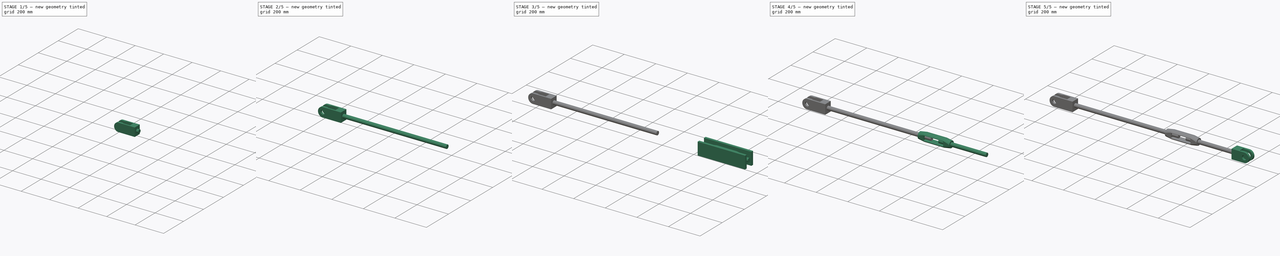
[diagram: build sequence overview — one tinted view per stage of 5, left to right]
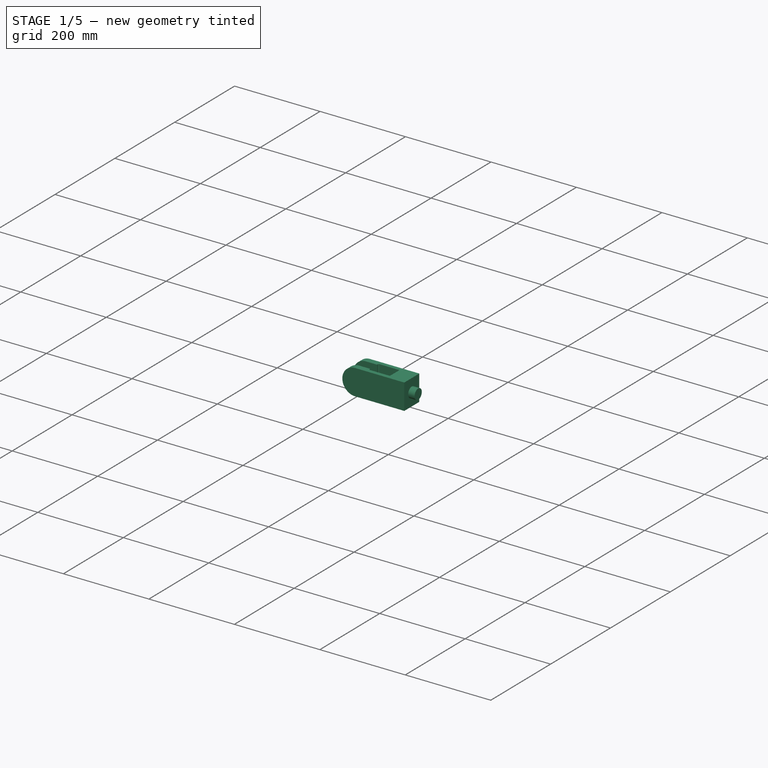
[diagram: stage 1 of 5 — iso view after this stage's code; geometry added in this stage tinted green]
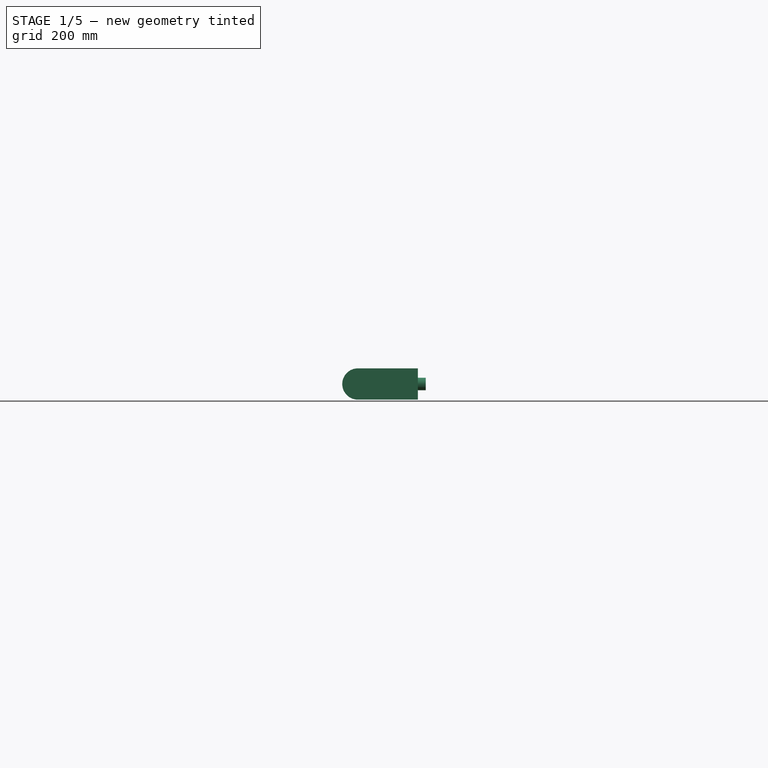
[diagram: stage 1 of 5 — front view after this stage's code; geometry added in this stage tinted green]
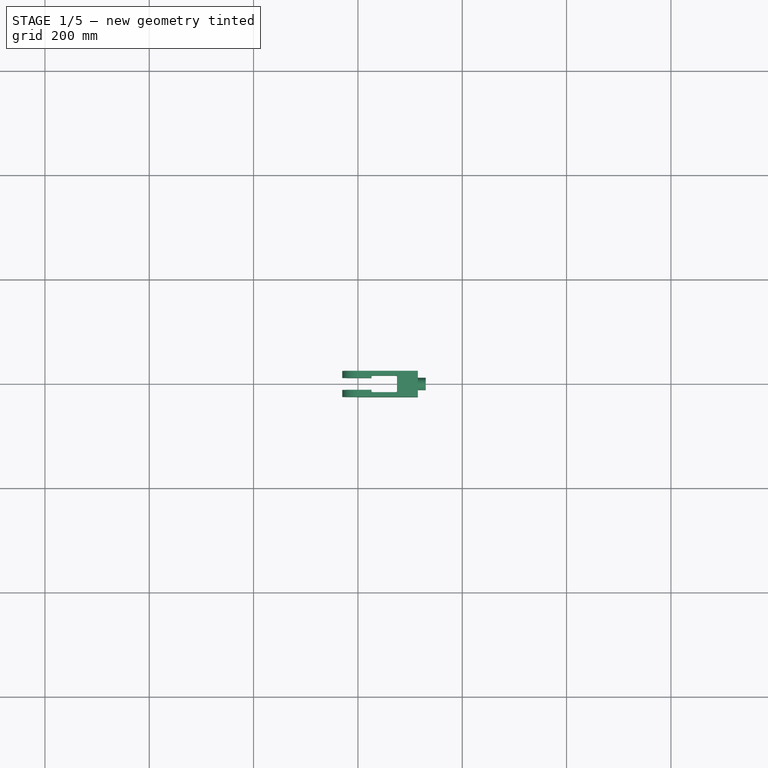
[diagram: stage 1 of 5 — top view after this stage's code; geometry added in this stage tinted green]
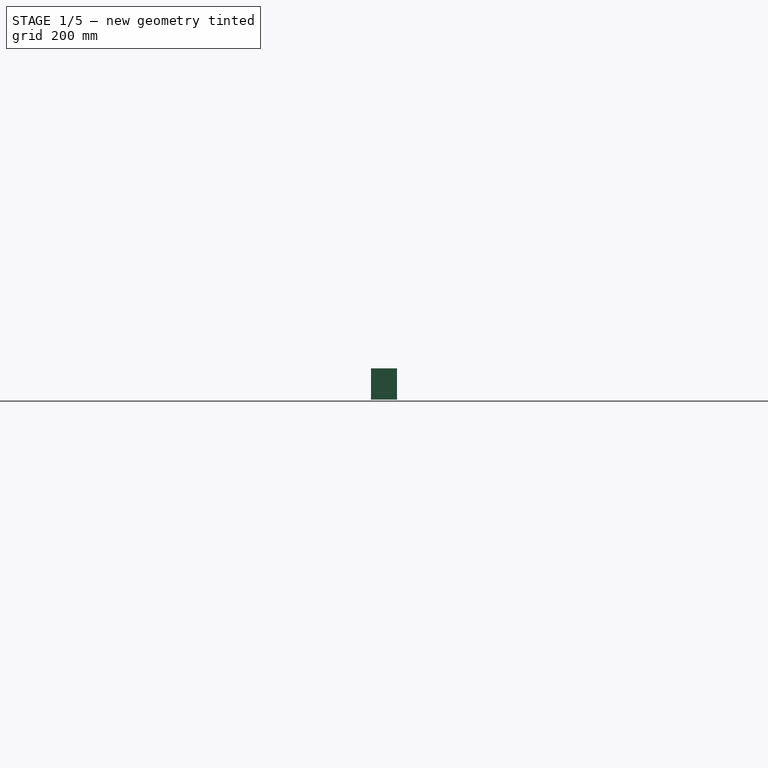
[diagram: stage 1 of 5 — right view after this stage's code; geometry added in this stage tinted green]
FCSTD DOCUMENT  (FreeCAD 1.0R39109 (Git))
Label: turnBackleA
License: All rights reserved
LicenseURL: https://en.wikipedia.org/wiki/All_rights_reserved
objects: Sketcher::SketchObject×10, Part::Extrusion×8, Part::Cut×7, Part::Cylinder×2, PartDesign::Pad×1, Spreadsheet::Sheet×1, Part::MultiFuse×1, Part::Revolution×1, App::Part×1
note: 42 computed .brp shape members not serialized (recipe doc carries the construction recipe); baked Part::Feature solids carry a one-line shape summary decoded from their .brp

FEATURE [Sketcher::SketchObject] Sketch
  ArcFitTolerance = 0
  FullyConstrained = true
  MakeInternals = false
  MapMode = 5
  Placement = pos=(0,0,0) rot=(1,0,0;1.5708rad)
  expr: Constraints[10] = Spreadsheet.L7 * 2
  expr: Constraints[9] = Spreadsheet.B7
  sketch-geometry (4):
    g0: LineSegment StartX=115 StartY=30 StartZ=0 EndX=-1.39551e-11 EndY=30 EndZ=0
    g1: ArcOfCircle CenterX=0 CenterY=0 CenterZ=0 NormalX=0 NormalY=0 NormalZ=1 AngleXU=0 Radius=30 StartAngle=1.5708 EndAngle=4.71239
    g2: LineSegment StartX=1.277e-13 StartY=-30 StartZ=0 EndX=115 EndY=-30 EndZ=0
    g3: LineSegment StartX=115 StartY=-30 StartZ=0 EndX=115 EndY=30 EndZ=0
  constraints (11):
    c: Horizontal(g0)
    c: Tangent(g0,g1) = -1.5708
    c: PointOnObject(g1,g-2)
    c: Coincident(g1,g2)
    c: Horizontal(g2)
    c: Coincident(g2,g3)
    c: Coincident(g3,g0)
    c: Vertical(g3)
    c: Coincident(g-1,g1)
    c: DistanceX(g0,g0) = 115
    c: Distance(g3) = 60
FEATURE [PartDesign::Pad] Pad
  Direction = (0,-1,0)
  Length = 50
  Length2 = 10
  Midplane = true
  Placement = pos=(0,0,0) rot=(1,0,0;1.5708rad)
  Profile = -> Sketch
  ReferenceAxis = -> Sketch [N_Axis]
  Suppressed = false
  Type = 0
  expr: Length = Spreadsheet.D7
FEATURE [Sketcher::SketchObject] Sketch017
  ArcFitTolerance = 0
  FullyConstrained = true
  MakeInternals = false
  MapMode = 5
  Placement = pos=(90,0,0) rot=(0.57735,0.57735,0.57735;2.0944rad)
  expr: Constraints[1] = Spreadsheet.dia
  sketch-geometry (1):
    g0: Circle CenterX=0 CenterY=0 CenterZ=0 NormalX=0 NormalY=0 NormalZ=1 AngleXU=0 Radius=12
  constraints (2):
    c: Coincident(g0,g-1)
    c: Diameter(g0) = 24
FEATURE [Part::Extrusion] Extrude008
  Base = -> Sketch017
  Dir = (1,0,0)
  DirMode = 2
  FaceMakerClass = Part::FaceMakerBullseye
  FaceMakerMode = 3
  LengthFwd = 40
  LengthRev = 0
  Solid = true
  Symmetric = false
  expr: LengthFwd = Spreadsheet.I7
FEATURE [Sketcher::SketchObject] Sketch016
  ArcFitTolerance = 0
  ExternalGeometry = -> [Pad]
  FullyConstrained = true
  MakeInternals = false
  expr: Constraints[17] = Spreadsheet.G7
  expr: Constraints[18] = Spreadsheet.G7 / 2
  expr: Constraints[27] = Spreadsheet.E7 / 2
  expr: Constraints[31] = Spreadsheet.I7
  expr: Constraints[32] = Spreadsheet.L7
  expr: Constraints[6] = Spreadsheet.E7
  expr: Constraints[7] = Spreadsheet.H7
  sketch-geometry (12):
    g0: LineSegment StartX=-30 StartY=11.5 StartZ=0 EndX=26 EndY=11.5 EndZ=0
    g1: LineSegment StartX=28 StartY=16 StartZ=0 EndX=73 EndY=16 EndZ=0
    g2: LineSegment StartX=75 StartY=14 StartZ=0 EndX=75 EndY=-14 EndZ=0
    g3: LineSegment StartX=73 StartY=-16 StartZ=0 EndX=28 EndY=-16 EndZ=0
    g4: LineSegment StartX=26 StartY=-14 StartZ=0 EndX=26 EndY=-11.5 EndZ=0
    g5: LineSegment StartX=26 StartY=-11.5 StartZ=0 EndX=-30 EndY=-11.5 EndZ=0
    g6: LineSegment StartX=-30 StartY=-11.5 StartZ=0 EndX=-30 EndY=11.5 EndZ=0
    g7: ArcOfCircle CenterX=28 CenterY=14 CenterZ=0 NormalX=0 NormalY=0 NormalZ=1 AngleXU=0 Radius=2 StartAngle=1.5708 EndAngle=3.14159
    g8: ArcOfCircle CenterX=28 CenterY=-14 CenterZ=0 NormalX=0 NormalY=0 NormalZ=1 AngleXU=0 Radius=2 StartAngle=3.14159 EndAngle=4.71239
    g9: ArcOfCircle CenterX=73 CenterY=-14 CenterZ=0 NormalX=0 NormalY=0 NormalZ=1 AngleXU=0 Radius=2 StartAngle=4.71239 EndAngle=6.28319
    g10: ArcOfCircle CenterX=73 CenterY=14 CenterZ=0 NormalX=0 NormalY=0 NormalZ=1 AngleXU=0 Radius=2 StartAngle=-5.08e-13 EndAngle=1.5708
    g11: LineSegment StartX=26 StartY=11.5 StartZ=0 EndX=26 EndY=14 EndZ=0
  constraints (33):
    c: Horizontal(g0)
    c: Coincident(g4,g5)
    c: Horizontal(g5)
    c: Coincident(g5,g6)
    c: Coincident(g6,g0)
    c: Vertical(g6)
    c: DistanceY(g6,g6) = 23
    c: DistanceX(g-1,g0) = 26
    c: Horizontal(g1)
    c: Horizontal(g3)
    c: Coincident(g11,g0)
    c: Vertical(g11)
    c: Vertical(g2)
    c: Tangent(g9,g2) = 1.5708
    c: Tangent(g1,g10) = 1.5708
    c: Tangent(g10,g2) = 1.5708
    c: Tangent(g1,g7) = 1.5708
    c: DistanceY(g3,g1) = 32
    c: DistanceY(g-1,g1) = 16
    c: Radius(g10) = 2
    c: Equal(g10,g9)
    c: Equal(g9,g7)
    c: Radius(g8) = 2
    c: Vertical(g4)
    c: Vertical(g4,g0)
    c: Tangent(g8,g4) = 1.5708
    c: Vertical(g8,g8)
    c: DistanceY(g-1,g0) = 11.5
    c: Tangent(g9,g3) = 1.5708
    c: Tangent(g7,g11) = 1.5708
    c: Coincident(g8,g3)
    c: DistanceX(g2,g-3) = 40
    c: DistanceX(g0,g-1) = 30
FEATURE [Part::Extrusion] Extrude007
  Base = -> Sketch016
  Dir = (0,0,1)
  DirMode = 2
  FaceMakerClass = Part::FaceMakerBullseye
  FaceMakerMode = 3
  LengthFwd = 150
  LengthRev = 0
  Solid = true
  Symmetric = true
FEATURE [Part::Cut] Cut
  Base = -> Pad
  Tool = -> Extrude007
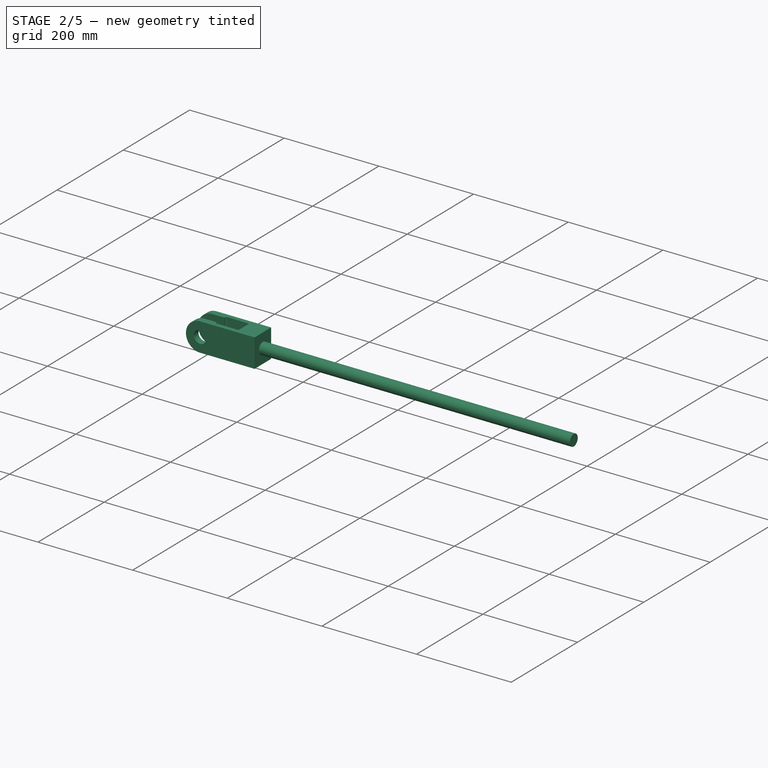
[diagram: stage 2 of 5 — iso view after this stage's code; geometry added in this stage tinted green]
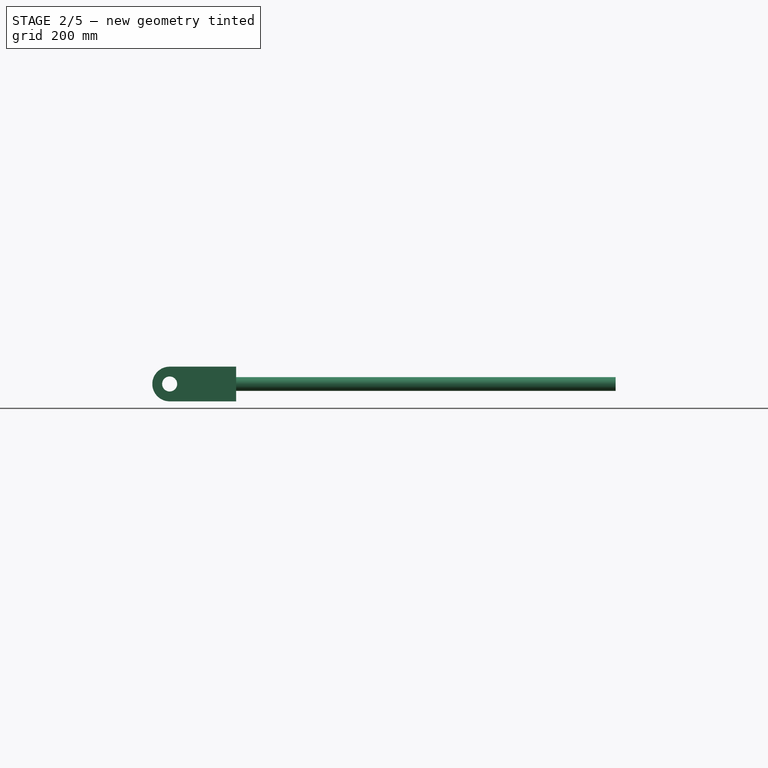
[diagram: stage 2 of 5 — front view after this stage's code; geometry added in this stage tinted green]
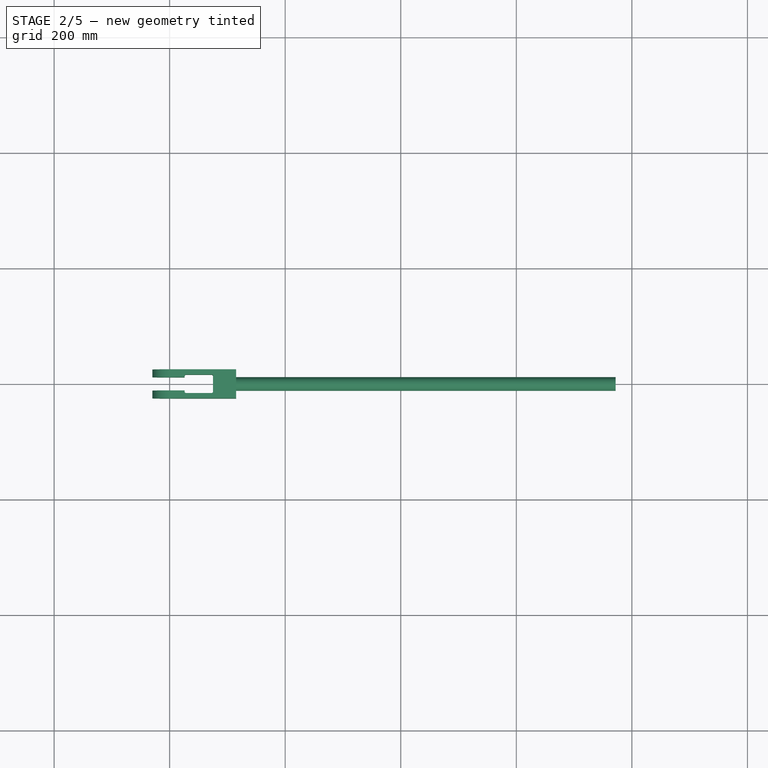
[diagram: stage 2 of 5 — top view after this stage's code; geometry added in this stage tinted green]
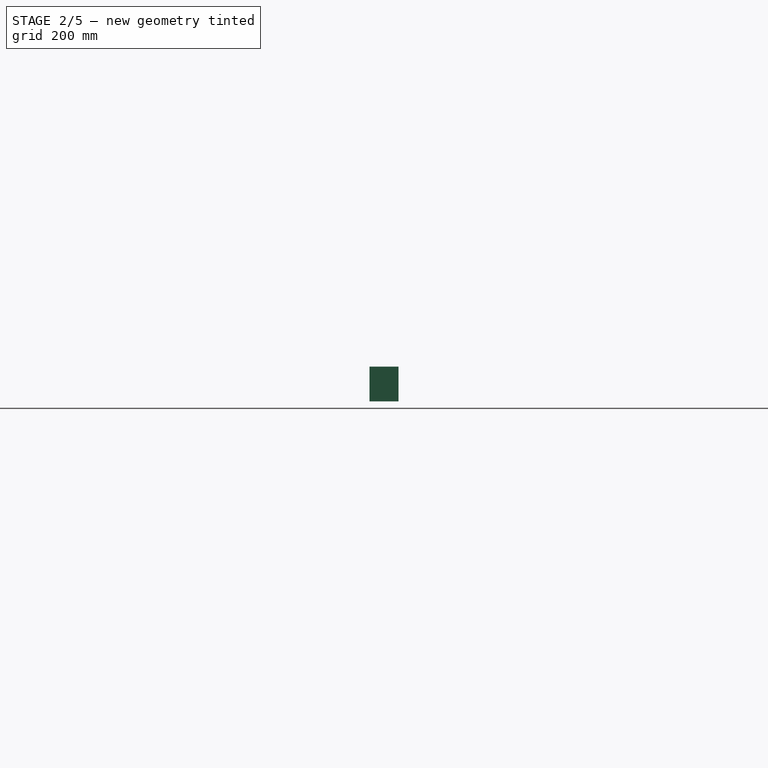
[diagram: stage 2 of 5 — right view after this stage's code; geometry added in this stage tinted green]
FEATURE [Spreadsheet::Sheet] Spreadsheet
  cells = A1='A; A2='rodDia dia; B2(dia)=24; A3='length L0; B3(L0)=1200; C3='turnbackle; D3(lx)=300; B4='l; C4='l1; D4='a; E4='b; F4='c; G4='e; H4='f; I4='g; J4='h; K4='i; L4='r; A5='forkEndR; B5=160; D5=50; E5=23; F5=28; G5=32; H5=26; I5=80; J5=10; K5=26; L5=30; A6='turnBackle; B6=200; C6=38; D6=54; E6=30; F6=42; A7='forkEndL; B7=115; D7=50; E7=23; F7=26; G7=32; H7=26; I7=40; L7=30; A8=1; B8=2; C8=3; D8=4; E8=5; F8=6; G8=7; H8=8; I8=9; J8=10; K8=11; L8=12; A9='turnBackle; A10='d; B10='l; C10='l1; D10='a; E10='b; F10='c; A11=10; B11=75; C11=15; D11=24; E11=13; F11=17; A12=12; B12=100; C12=20; D12=30; E12=16; F12=22; A13=16; B13=125; C13=24; D13=36; E13=20; F13=27; A14=20; B14=150; C14=28; D14=42; E14=23; F14=33; A15=22; B15=175; C15=33; D15=48; E15=27; F15=37; A16=24; B16=200; C16=38; D16=54; E16=30; F16=42; A17=30; B17=250; C17=47; D17=66; E17=37; F17=52; A18='forkEnd_L; A19='d; B19='l; C19='a; D19='b; E19='c; F19='e; G19='f; H19='g; I19='r; A20=10; B20=50; C20=20; D20=7; E20=10; F20=12; G20=10; H20=15; I20=12; A21=12; B21=60; C21=25; D21=10; E21=13; F21=16; G21=13; H21=20; I21=15; A22=16; B22=75; C22=30; D22=13; E22=16; F22=20; G22=16; H22=25; I22=19; A23=20; B23=90; C23=40; D23=16; E23=20; F23=24; G23=20; H23=30; I23=23; A24=22; B24=100; C24=45; D24=20; E24=23; F24=28; G24=23; H24=35; I24=27; A25=24; B25=115; C25=50; D25=23; E25=26; F25=32; G25=26; H25=40; I25=30; A26=30; B26=140; C26=65; D26=30; E26=33; F26=40; G26=33; H26=50; I26=38; A27='forkEnd_R; A28='d; B28='l; C28='a; D28='b; E28='c; F28='r; G28='e; H28='f; I28='g; J28='h; K28='i; A29=10; B29=60; C29=20; D29=7; E29=11; F29=12; G29=12; H29=10; I29=30; J29=5; +67 more cells
FEATURE [Sketcher::SketchObject] Sketch007
  ArcFitTolerance = 0
  AttachmentSupport = -> [Pad]
  FullyConstrained = true
  MakeInternals = false
  MapMode = 5
  Placement = pos=(0,-25,-8.3e-15) rot=(1,0,0;1.5708rad)
  expr: Constraints[1] = Spreadsheet.F7 / 2
  sketch-geometry (1):
    g0: Circle CenterX=0 CenterY=0 CenterZ=0 NormalX=0 NormalY=0 NormalZ=1 AngleXU=0 Radius=13
  constraints (2):
    c: Coincident(g0,g-1)
    c: Radius(g0) = 13
FEATURE [Part::Extrusion] Extrude
  Base = -> Sketch007
  Dir = (0,-1,2e-16)
  DirMode = 2
  FaceMakerClass = Part::FaceMakerBullseye
  FaceMakerMode = 3
  LengthFwd = 65
  LengthRev = 0
  Reversed = true
  Solid = true
  Symmetric = false
FEATURE [Part::Cylinder] Cylinder001  label="rod"
  Angle = 360
  AttacherType = Attacher::AttachEngine3D
  FirstAngle = 0
  Height = 693
  Placement = pos=(-428,0,-3.4e-14) rot=(0,-1,0;1.5708rad)
  Radius = 12
  SecondAngle = 0
  expr: .Placement.Base.x = -(Spreadsheet.lx + Spreadsheet.I5 + Spreadsheet.dia * 2)
  expr: Height = Spreadsheet.L0 - (Spreadsheet.lx + Spreadsheet.I5 + Spreadsheet.B6 - 4 * Spreadsheet.dia - 2 * Spreadsheet.C6) - Spreadsheet.B7 + Spreadsheet.I7 - Spreadsheet.dia
  expr: Radius = Spreadsheet.dia / 2
FEATURE [Part::Cut] Cut007
  Base = -> Cut
  Tool = -> Extrude008
FEATURE [Part::Cut] Cut008  label="forkEndL"
  Base = -> Cut007
  Placement = pos=(-1200,0,1.46e-13) rot=(0,0,1;0rad)
  Tool = -> Extrude
  expr: .Placement.Base.x = -Spreadsheet.L0
FEATURE [App::Part] Part  label="TurnBackle"
  Group = -> [Spreadsheet,Sketch009,Cylinder,Cut003,Sketch010,Extrude002,Extrude003,Fusion,Revolve,Sketch012,Cut005,Cut004,Extrude004,Extrude005,Extrude006,Sketch013,Sketch011,Sketch014,Cut006,Cylinder001,Extrude,Sketch007,Extrude008,Extrude007,Cut,Cut007,Sketch017,Pad,Sketch,Sketch016,Cut008]
  Origin = -> Origin
  Placement = pos=(0,0,0) rot=(0,1,0;3.14159rad)
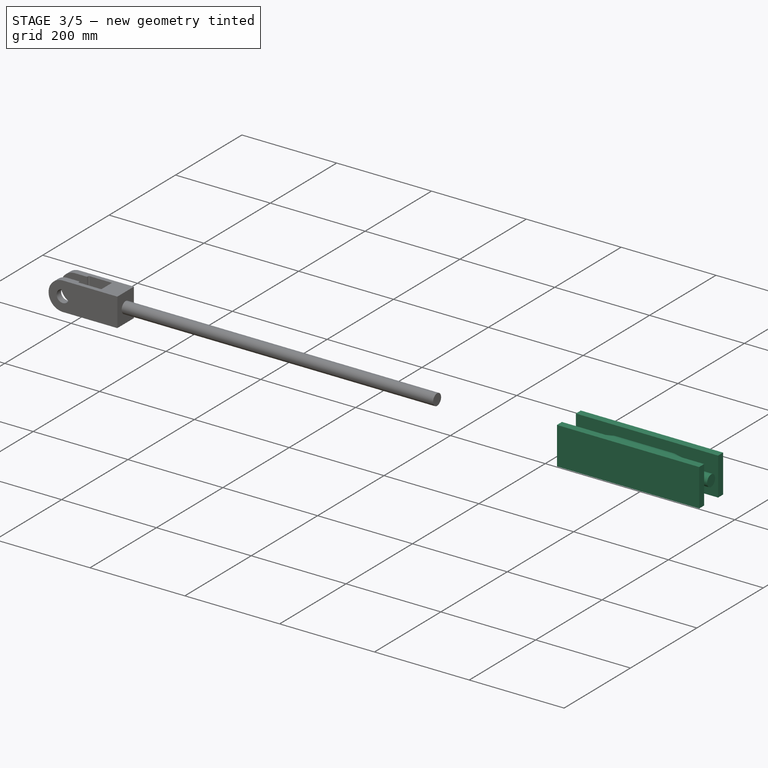
[diagram: stage 3 of 5 — iso view after this stage's code; geometry added in this stage tinted green]
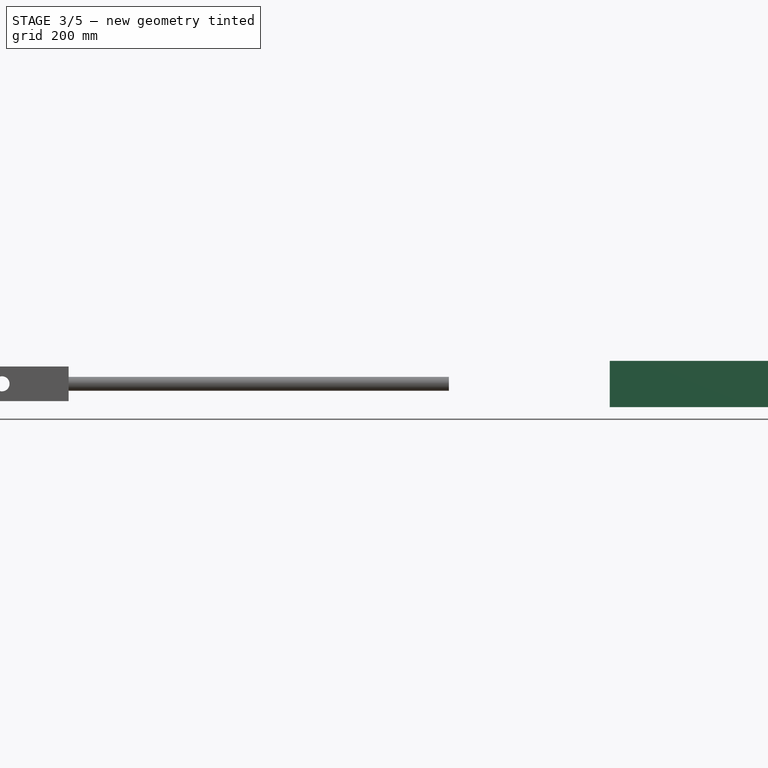
[diagram: stage 3 of 5 — front view after this stage's code; geometry added in this stage tinted green]
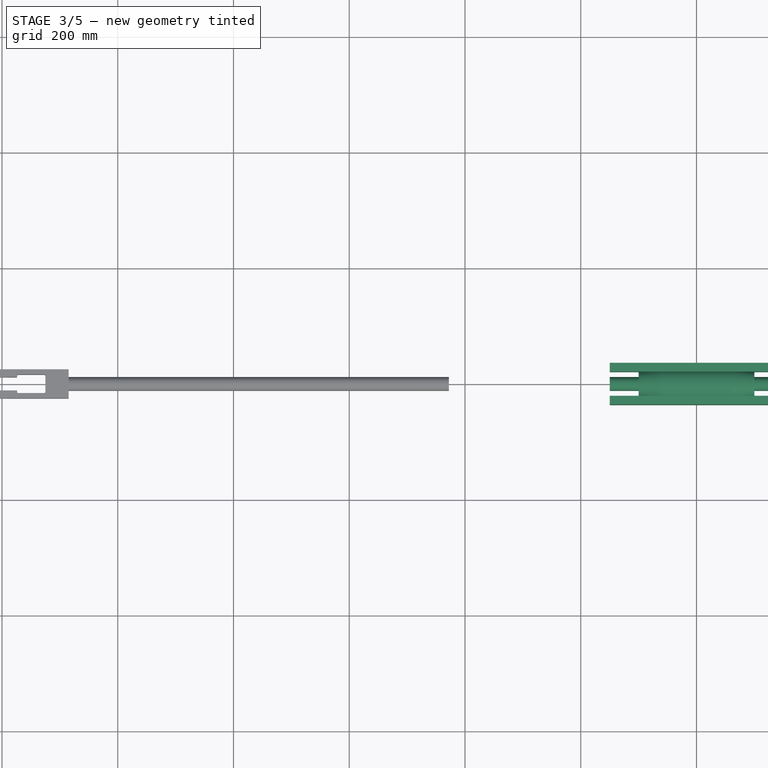
[diagram: stage 3 of 5 — top view after this stage's code; geometry added in this stage tinted green]
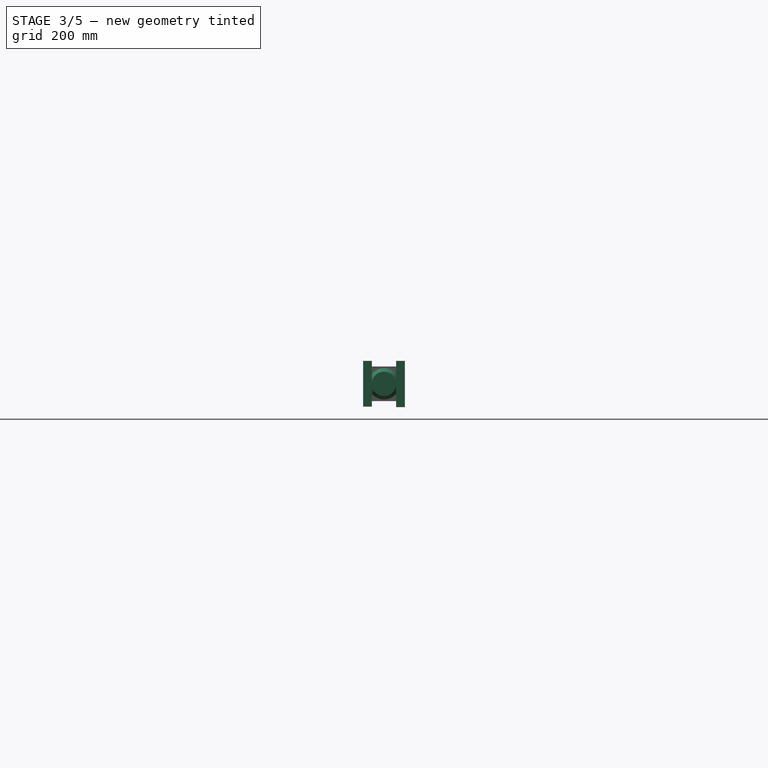
[diagram: stage 3 of 5 — right view after this stage's code; geometry added in this stage tinted green]
FEATURE [Sketcher::SketchObject] Sketch011
  ArcFitTolerance = 0
  FullyConstrained = true
  MakeInternals = false
  Placement = pos=(0,0,0) rot=(1,0,0;1.5708rad)
  expr: Constraints[10] = Spreadsheet.C6
  expr: Constraints[11] = Spreadsheet.B6
  expr: Constraints[12] = Spreadsheet.D6 / 2
  expr: Constraints[13] = Spreadsheet.F6 / 2
  expr: Constraints[14] = Spreadsheet.B6 / 2
  expr: Constraints[17] = Spreadsheet.C6
  sketch-geometry (6):
    g0: LineSegment StartX=-100 StartY=0 StartZ=0 EndX=-100 EndY=21 EndZ=0
    g1: LineSegment StartX=-100 StartY=21 StartZ=0 EndX=-62 EndY=27 EndZ=0
    g2: LineSegment StartX=-62 StartY=27 StartZ=0 EndX=62 EndY=27 EndZ=0
    g3: LineSegment StartX=62 StartY=27 StartZ=0 EndX=100 EndY=21 EndZ=0
    g4: LineSegment StartX=100 StartY=21 StartZ=0 EndX=100 EndY=0 EndZ=0
    g5: LineSegment StartX=100 StartY=0 StartZ=0 EndX=-100 EndY=0 EndZ=0
  constraints (18):
    c: PointOnObject(g0,g-1)
    c: Vertical(g0)
    c: Coincident(g0,g1)
    c: Coincident(g1,g2)
    c: Horizontal(g2)
    c: Coincident(g2,g3)
    c: Coincident(g3,g4)
    c: PointOnObject(g4,g-1)
    c: Vertical(g4)
    c: Coincident(g4,g5)
    c: DistanceX(g2,g3) = 38
    c: DistanceX(g0,g3) = 200
    c: Distance(g1,g5) = 27
    c: Distance(g4) = 21
    c: DistanceX(g-1,g4) = 100
    c: Horizontal(g0,g3)
    c: Coincident(g5,g0)
    c: DistanceX(g0,g1) = 38
FEATURE [Part::Revolution] Revolve
  Angle = 360
  Axis = (-1,0,0)
  AxisLink = -> Sketch011 [Edge6]
  Base = (-100,0,0)
  FaceMakerClass = Part::FaceMakerBullseye
  Solid = true
  Source = -> Sketch011
  Symmetric = false
FEATURE [Sketcher::SketchObject] Sketch012
  ArcFitTolerance = 0
  FullyConstrained = false
  MakeInternals = false
  Placement = pos=(0,0,0) rot=(0.57735,0.57735,0.57735;2.0944rad)
  expr: Constraints[16] = Spreadsheet.F6
  expr: Constraints[17] = Spreadsheet.F6 / 2
  sketch-geometry (8):
    g0: LineSegment StartX=-21 StartY=39.685 StartZ=0 EndX=-36 EndY=39.685 EndZ=0
    g1: LineSegment StartX=-36 StartY=39.685 StartZ=0 EndX=-36 EndY=-39.3666 EndZ=0
    g2: LineSegment StartX=-36 StartY=-39.3666 StartZ=0 EndX=-21 EndY=-39.3666 EndZ=0
    g3: LineSegment StartX=-21 StartY=-39.3666 StartZ=0 EndX=-21 EndY=39.685 EndZ=0
    g4: LineSegment StartX=21 StartY=39.685 StartZ=0 EndX=36 EndY=39.685 EndZ=0
    g5: LineSegment StartX=36 StartY=39.685 StartZ=0 EndX=36 EndY=-40.315 EndZ=0
    g6: LineSegment StartX=36 StartY=-40.315 StartZ=0 EndX=21 EndY=-40.315 EndZ=0
    g7: LineSegment StartX=21 StartY=-40.315 StartZ=0 EndX=21 EndY=39.685 EndZ=0
  constraints (22):
    c: Coincident(g0,g1)
    c: Coincident(g1,g2)
    c: Coincident(g2,g3)
    c: Coincident(g3,g0)
    c: Horizontal(g0)
    c: Horizontal(g2)
    c: Vertical(g1)
    c: Vertical(g3)
    c: Coincident(g4,g5)
    c: Coincident(g5,g6)
    c: Coincident(g6,g7)
    c: Coincident(g7,g4)
    c: Horizontal(g4)
    c: Horizontal(g6)
    c: Vertical(g5)
    c: Vertical(g7)
    c: DistanceX(g0,g4) = 42
    c: Distance(g-1,g7) = 21
    c: Distance(g5) = 80
    c: Distance(g4) = 15
    c: Distance(g0) = 15
    c: Horizontal(g0,g4)
FEATURE [Part::Extrusion] Extrude004
  Base = -> Sketch012
  Dir = (1,0,0)
  DirMode = 2
  FaceMakerClass = Part::FaceMakerBullseye
  FaceMakerMode = 3
  LengthFwd = 300
  LengthRev = 0
  Solid = true
  Symmetric = true
FEATURE [Sketcher::SketchObject] Sketch013
  ArcFitTolerance = 0
  FullyConstrained = true
  MakeInternals = false
  Placement = pos=(0,0,0) rot=(1,0,0;1.5708rad)
  expr: Constraints[17] = Spreadsheet.E6
  expr: Constraints[18] = Spreadsheet.B6 - 2 * Spreadsheet.C6
  expr: Constraints[19] = (Spreadsheet.B6 - 2 * Spreadsheet.C6) / 2
  expr: Constraints[20] = Spreadsheet.E6 / 2
  sketch-geometry (9):
    g0: LineSegment StartX=62 StartY=10 StartZ=0 EndX=62 EndY=-10 EndZ=0
    g1: LineSegment StartX=57 StartY=-15 StartZ=0 EndX=-57 EndY=-15 EndZ=0
    g2: LineSegment StartX=-62 StartY=-10 StartZ=0 EndX=-62 EndY=10 EndZ=0
    g3: LineSegment StartX=-57 StartY=15 StartZ=0 EndX=57 EndY=15 EndZ=0
    g4: GeomPoint [constr] X=0 Y=0 Z=0
    g5: ArcOfCircle CenterX=-57 CenterY=10 CenterZ=0 NormalX=0 NormalY=0 NormalZ=1 AngleXU=0 Radius=5 StartAngle=1.5708 EndAngle=3.14159
    g6: ArcOfCircle CenterX=-57 CenterY=-10 CenterZ=0 NormalX=0 NormalY=0 NormalZ=1 AngleXU=0 Radius=5 StartAngle=3.14159 EndAngle=4.71239
    g7: ArcOfCircle CenterX=57 CenterY=-10 CenterZ=0 NormalX=0 NormalY=0 NormalZ=1 AngleXU=0 Radius=5 StartAngle=4.71239 EndAngle=6.28319
    g8: ArcOfCircle CenterX=57 CenterY=10 CenterZ=0 NormalX=0 NormalY=0 NormalZ=1 AngleXU=0 Radius=5 StartAngle=0 EndAngle=1.5708
  constraints (21):
    c: Horizontal(g1)
    c: Horizontal(g3)
    c: Vertical(g0)
    c: Vertical(g2)
    c: Coincident(g4,g-1)
    c: Tangent(g3,g5) = 1.5708
    c: Tangent(g2,g5) = 1.5708
    c: Tangent(g1,g6) = 1.5708
    c: Tangent(g2,g6) = 1.5708
    c: Tangent(g1,g7) = 1.5708
    c: Tangent(g0,g7) = 1.5708
    c: Tangent(g0,g8) = 1.5708
    c: Tangent(g3,g8) = 1.5708
    c: Radius(g8) = 5
    c: Equal(g8,g7)
    c: Equal(g7,g6)
    c: Equal(g6,g5)
    c: DistanceY(g1,g3) = 30
    c: DistanceX(g2,g0) = 124
    c: Distance(g4,g2) = 62
    c: Distance(g4,g1) = 15
FEATURE [Part::Extrusion] Extrude005
  Base = -> Sketch013
  Dir = (0,-1,2e-16)
  DirMode = 2
  FaceMakerClass = Part::FaceMakerBullseye
  FaceMakerMode = 3
  LengthFwd = 60
  LengthRev = 0
  Solid = true
  Symmetric = true
FEATURE [Sketcher::SketchObject] Sketch014
  ArcFitTolerance = 0
  FullyConstrained = true
  MakeInternals = false
  Placement = pos=(0,0,0) rot=(0.57735,0.57735,0.57735;2.0944rad)
  expr: Constraints[1] = Spreadsheet.dia / 2
  sketch-geometry (1):
    g0: Circle CenterX=0 CenterY=0 CenterZ=0 NormalX=0 NormalY=0 NormalZ=1 AngleXU=0 Radius=12
  constraints (2):
    c: Coincident(g0,g-1)
    c: Radius(g0) = 12
FEATURE [Part::Extrusion] Extrude006
  Base = -> Sketch014
  Dir = (1,0,0)
  DirMode = 2
  FaceMakerClass = Part::FaceMakerBullseye
  FaceMakerMode = 3
  LengthFwd = 300
  LengthRev = 0
  Solid = true
  Symmetric = true
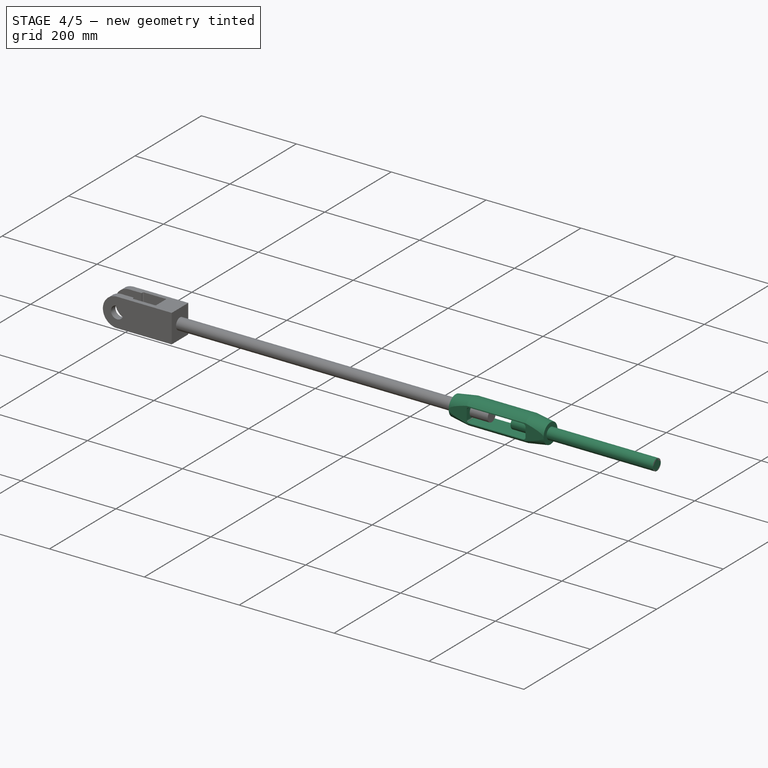
[diagram: stage 4 of 5 — iso view after this stage's code; geometry added in this stage tinted green]
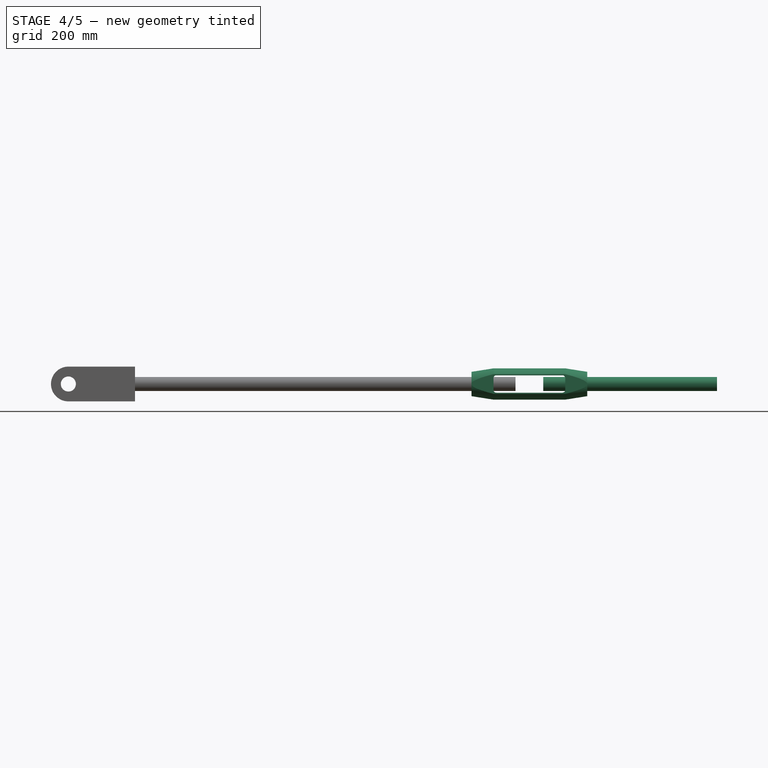
[diagram: stage 4 of 5 — front view after this stage's code; geometry added in this stage tinted green]
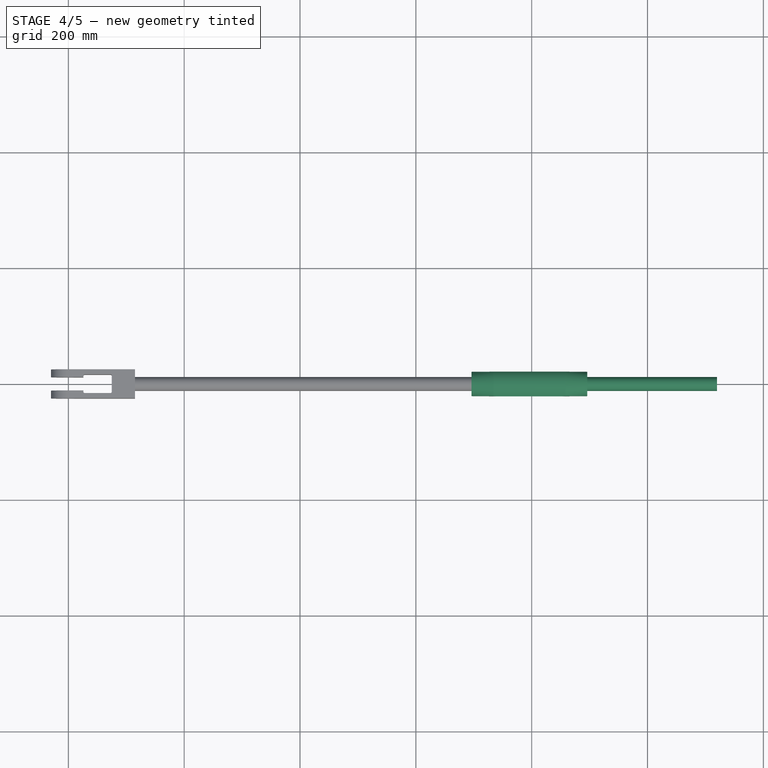
[diagram: stage 4 of 5 — top view after this stage's code; geometry added in this stage tinted green]
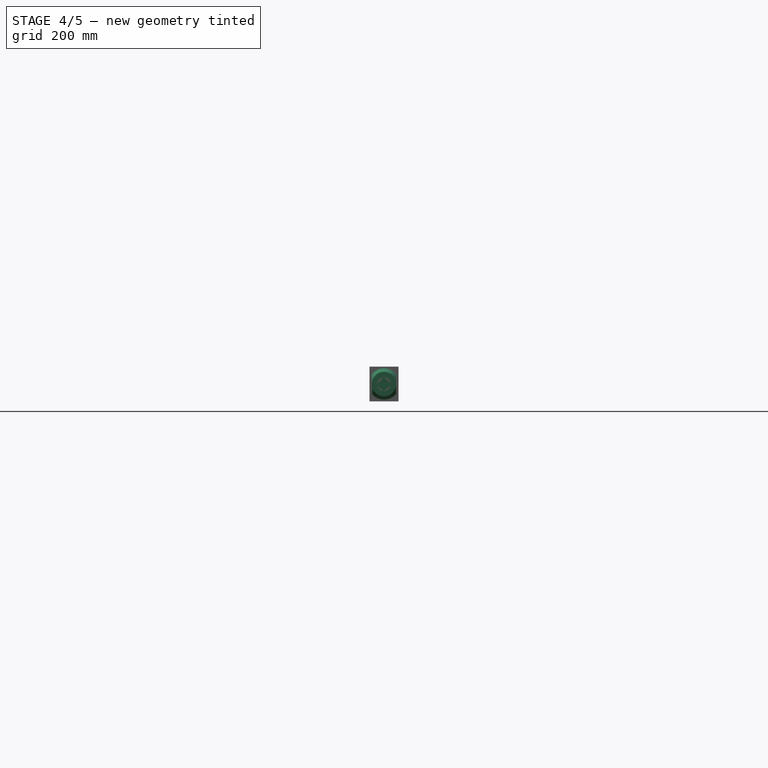
[diagram: stage 4 of 5 — right view after this stage's code; geometry added in this stage tinted green]
FEATURE [Part::Cylinder] Cylinder  label="円柱"
  Angle = 360
  AttacherType = Attacher::AttachEngine3D
  FirstAngle = 0
  Height = 300
  Placement = pos=(-80,0,0) rot=(0,-1,0;1.5708rad)
  Radius = 12
  SecondAngle = 0
  expr: .Placement.Base.x = -Spreadsheet.I5
  expr: Height = Spreadsheet.lx
  expr: Radius = Spreadsheet.dia / 2
FEATURE [Part::Cut] Cut004
  Base = -> Revolve
  Tool = -> Extrude004
FEATURE [Part::Cut] Cut005
  Base = -> Cut004
  Tool = -> Extrude005
FEATURE [Part::Cut] Cut006  label="turnBackle"
  Base = -> Cut005
  Placement = pos=(-404,0,4.8e-14) rot=(0,0,1;0rad)
  Tool = -> Extrude006
  expr: .Placement.Base.x = -(Spreadsheet.lx + Spreadsheet.I5 + Spreadsheet.dia)
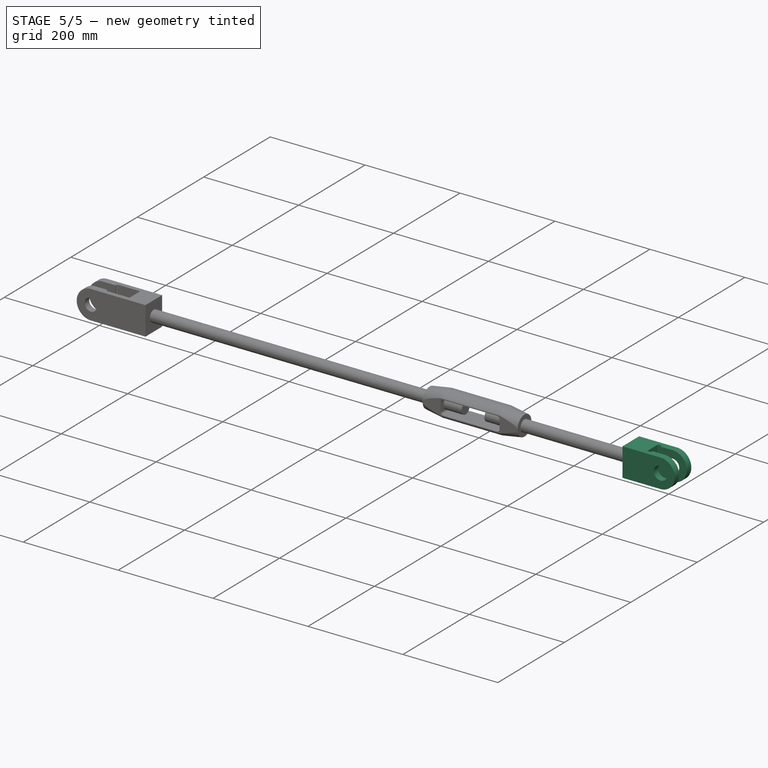
[diagram: stage 5 of 5 — iso view after this stage's code; geometry added in this stage tinted green]
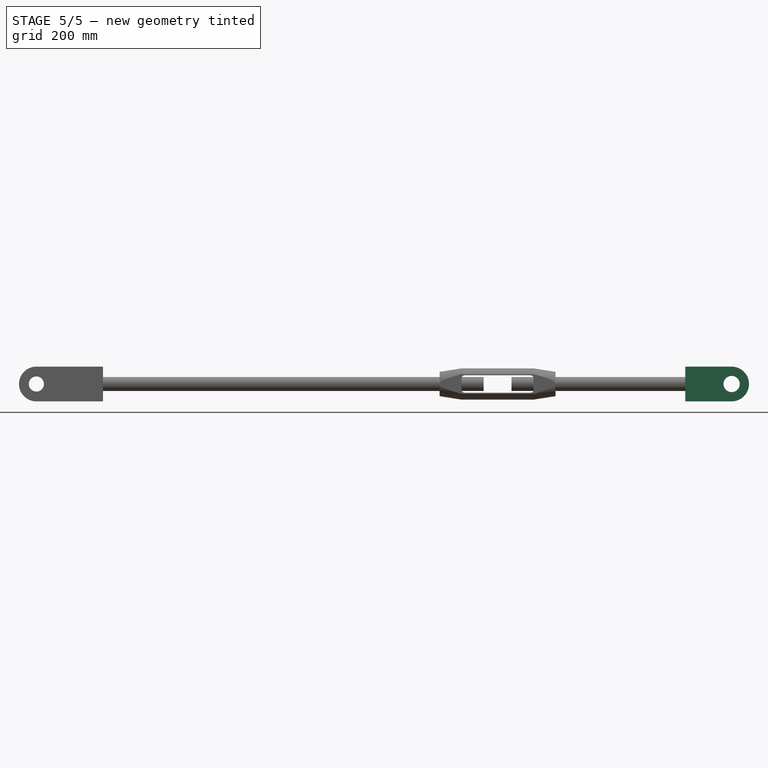
[diagram: stage 5 of 5 — front view after this stage's code; geometry added in this stage tinted green]
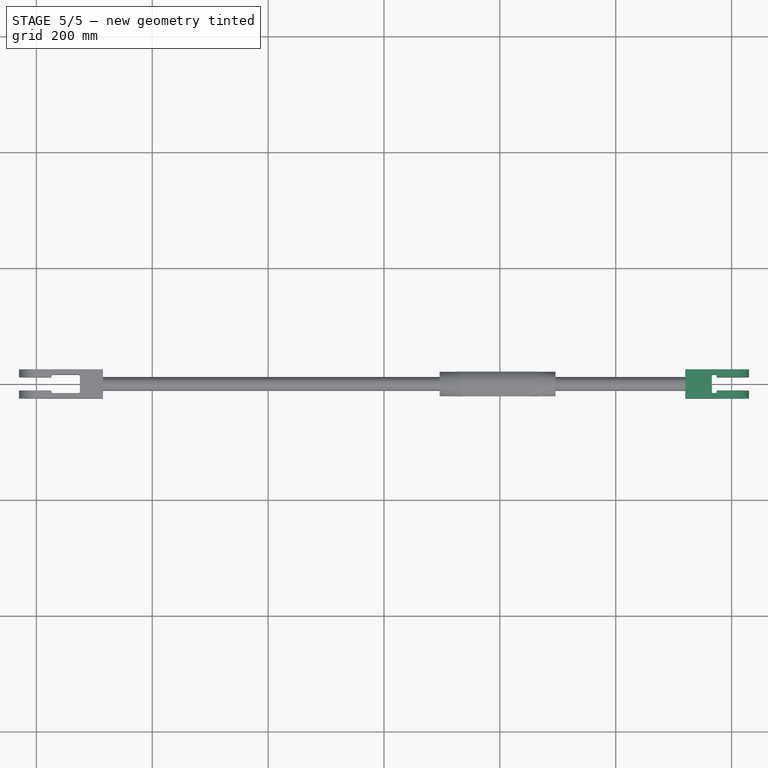
[diagram: stage 5 of 5 — top view after this stage's code; geometry added in this stage tinted green]
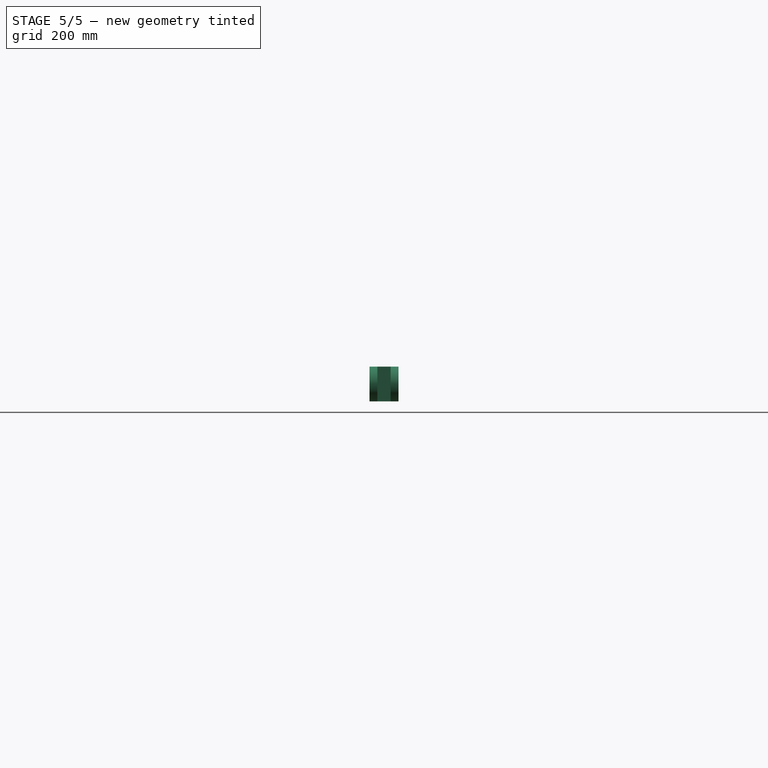
[diagram: stage 5 of 5 — right view after this stage's code; geometry added in this stage tinted green]
FEATURE [Sketcher::SketchObject] Sketch009
  ArcFitTolerance = 0
  FullyConstrained = true
  MakeInternals = false
  Placement = pos=(0,0,0) rot=(1,0,0;1.5708rad)
  expr: Constraints[11] = Spreadsheet.I5
  expr: Constraints[1] = Spreadsheet.F5 / 2
  expr: Constraints[3] = Spreadsheet.L5
  sketch-geometry (5):
    g0: Circle CenterX=0 CenterY=0 CenterZ=0 NormalX=0 NormalY=0 NormalZ=1 AngleXU=0 Radius=14
    g1: ArcOfCircle CenterX=0 CenterY=0 CenterZ=0 NormalX=0 NormalY=0 NormalZ=1 AngleXU=0 Radius=30 StartAngle=4.71239 EndAngle=7.85398
    g2: LineSegment StartX=3.23803e-10 StartY=30 StartZ=0 EndX=-80 EndY=30 EndZ=0
    g3: LineSegment StartX=-80 StartY=30 StartZ=0 EndX=-80 EndY=-30 EndZ=0
    g4: LineSegment StartX=-80 StartY=-30 StartZ=0 EndX=0 EndY=-30 EndZ=0
  constraints (12):
    c: Coincident(g0,g-1)
    c: Radius(g0) = 14
    c: Coincident(g1,g0)
    c: Radius(g1) = 30
    c: Horizontal(g2)
    c: Coincident(g2,g3)
    c: Vertical(g3)
    c: Coincident(g3,g4)
    c: Horizontal(g4)
    c: Tangent(g1,g2) = -1.5708
    c: Tangent(g1,g4) = -1.5708
    c: Distance(g2) = 80
FEATURE [Part::Extrusion] Extrude002
  Base = -> Sketch009
  Dir = (0,-1,2e-16)
  DirMode = 2
  FaceMakerClass = Part::FaceMakerBullseye
  FaceMakerMode = 3
  LengthFwd = 50
  LengthRev = 0
  Solid = true
  Symmetric = true
  expr: LengthFwd = Spreadsheet.D5
FEATURE [Sketcher::SketchObject] Sketch010
  ArcFitTolerance = 0
  AttachmentSupport = -> [Extrude002]
  FullyConstrained = true
  MakeInternals = false
  MapMode = 5
  Placement = pos=(0,6.7e-15,30) rot=(0,0,1;0rad)
  expr: Constraints[10] = Spreadsheet.E5
  expr: Constraints[24] = Spreadsheet.G5
  expr: Constraints[25] = Spreadsheet.K5
  expr: Constraints[26] = Spreadsheet.H5
  expr: Constraints[31] = Spreadsheet.E5 / 2
  expr: Constraints[32] = Spreadsheet.G5 / 2
  expr: Constraints[9] = Spreadsheet.L5
  sketch-geometry (12):
    g0: LineSegment StartX=30 StartY=11.5 StartZ=0 EndX=-26 EndY=11.5 EndZ=0
    g1: LineSegment StartX=-27 StartY=16 StartZ=0 EndX=-33 EndY=16 EndZ=0
    g2: LineSegment StartX=-34 StartY=15 StartZ=0 EndX=-34 EndY=-15 EndZ=0
    g3: LineSegment StartX=-33 StartY=-16 StartZ=0 EndX=-27 EndY=-16 EndZ=0
    g4: LineSegment StartX=-26 StartY=-15 StartZ=0 EndX=-26 EndY=-11.5 EndZ=0
    g5: LineSegment StartX=-26 StartY=-11.5 StartZ=0 EndX=30 EndY=-11.5 EndZ=0
    g6: LineSegment StartX=30 StartY=-11.5 StartZ=0 EndX=30 EndY=11.5 EndZ=0
    g7: ArcOfCircle CenterX=-27 CenterY=15 CenterZ=0 NormalX=0 NormalY=0 NormalZ=1 AngleXU=0 Radius=1 StartAngle=6.28318 EndAngle=7.85398
    g8: ArcOfCircle CenterX=-27 CenterY=-15 CenterZ=0 NormalX=0 NormalY=0 NormalZ=1 AngleXU=0 Radius=1 StartAngle=4.71239 EndAngle=6.28319
    g9: ArcOfCircle CenterX=-33 CenterY=15 CenterZ=0 NormalX=0 NormalY=0 NormalZ=1 AngleXU=0 Radius=1 StartAngle=1.5708 EndAngle=3.14159
    g10: ArcOfCircle CenterX=-33 CenterY=-15 CenterZ=0 NormalX=0 NormalY=0 NormalZ=1 AngleXU=0 Radius=1 StartAngle=3.14159 EndAngle=4.71239
    g11: LineSegment StartX=-26 StartY=11.5 StartZ=0 EndX=-26 EndY=15 EndZ=0
  constraints (33):
    c: Horizontal(g0)
    c: Horizontal(g1)
    c: Vertical(g2)
    c: Horizontal(g3)
    c: Coincident(g4,g5)
    c: Horizontal(g5)
    c: Coincident(g5,g6)
    c: Coincident(g6,g0)
    c: Vertical(g6)
    c: DistanceX(g-1,g5) = 30
    c: Distance(g6) = 23
    c: Vertical(g4)
    c: Vertical(g4,g0)
    c: Tangent(g1,g7) = -1.5708
    c: Tangent(g4,g8) = -1.5708
    c: Tangent(g3,g8) = -1.5708
    c: Tangent(g2,g9) = -1.5708
    c: Tangent(g1,g9) = -1.5708
    c: Tangent(g3,g10) = -1.5708
    c: Tangent(g2,g10) = -1.5708
    c: Radius(g7) = 1
    c: Radius(g8) = 1
    c: Equal(g10,g9)
    c: Radius(g10) = 1
    c: DistanceY(g3,g1) = 32
    c: DistanceX(g-3,g2) = 26
    c: DistanceX(g4,g-1) = 26
    c: Equal(g3,g1)
    c: Coincident(g11,g0)
    c: Coincident(g11,g7)
    c: Vertical(g11)
    c: DistanceY(g-1,g0) = 11.5
    c: DistanceY(g-1,g1) = 16
FEATURE [Part::Extrusion] Extrude003
  Base = -> Sketch010
  Dir = (0,0,1)
  DirMode = 2
  FaceMakerClass = Part::FaceMakerBullseye
  FaceMakerMode = 3
  LengthFwd = 80
  LengthRev = 0
  Reversed = true
  Solid = true
  Symmetric = false
FEATURE [Part::Cut] Cut003
  Base = -> Extrude002
  Tool = -> Extrude003
FEATURE [Part::MultiFuse] Fusion  label="forkEndR"
  Shapes = -> [Cut003,Cylinder]
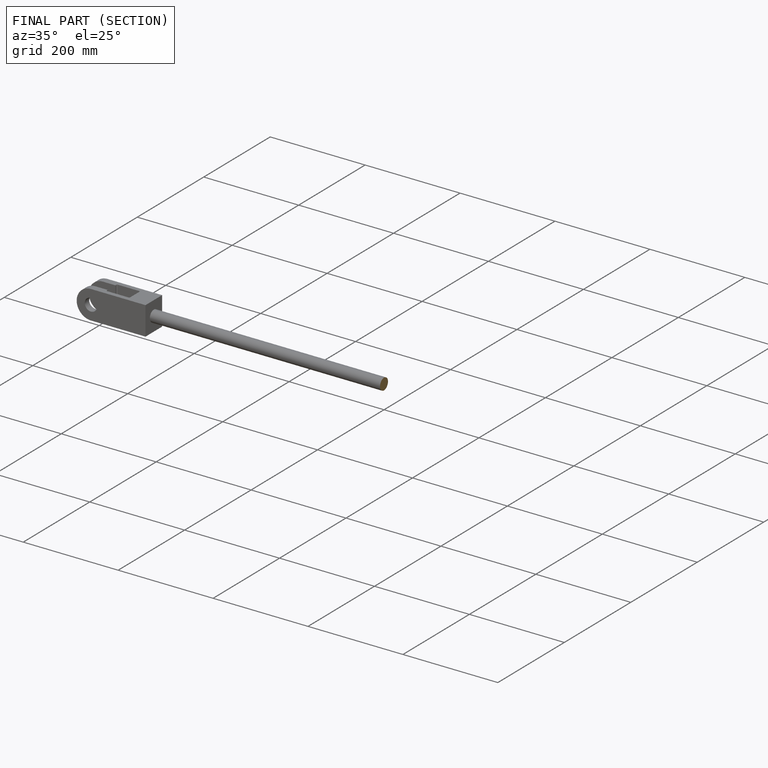
[diagram: finished part — half-section view (interior)]
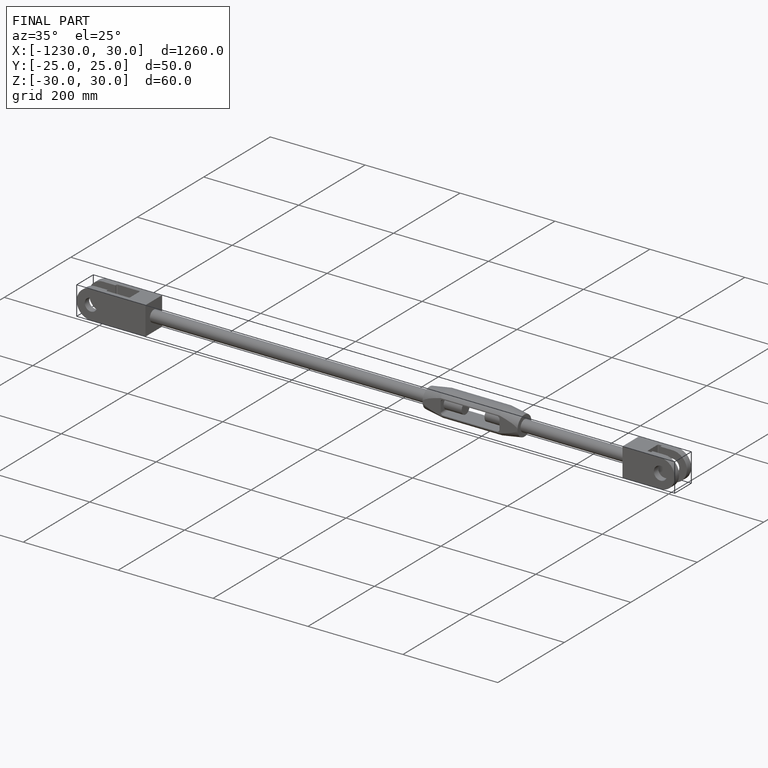
[diagram: finished part — iso view with bounding-box wireframe]
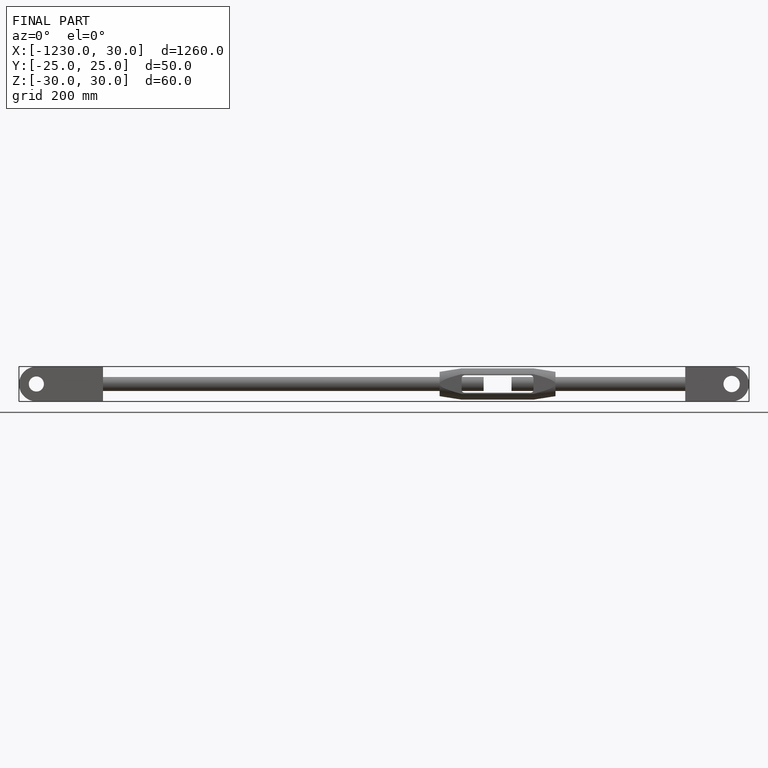
[diagram: finished part — front view with bounding-box wireframe]
